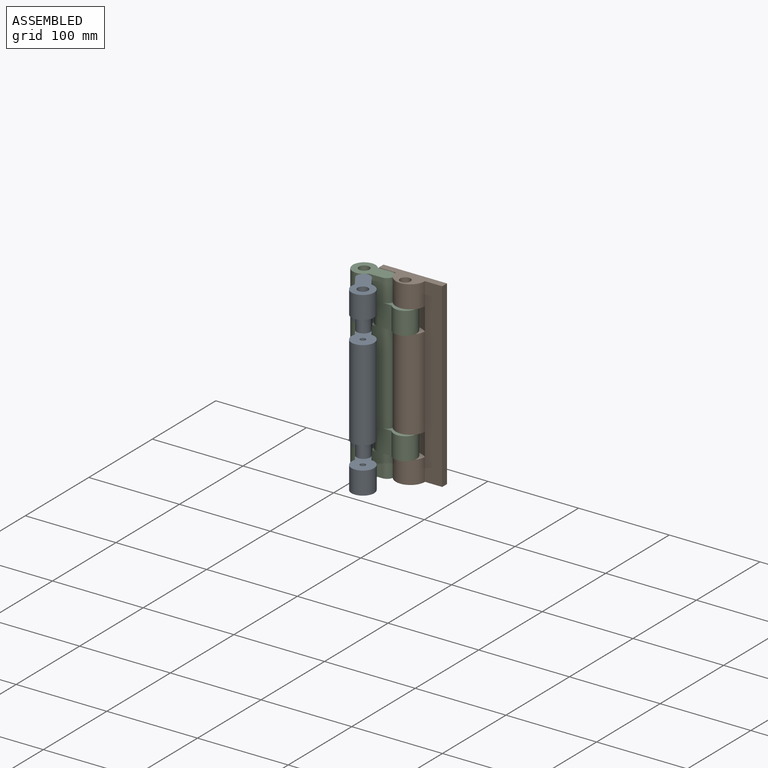
[diagram: assembled view]
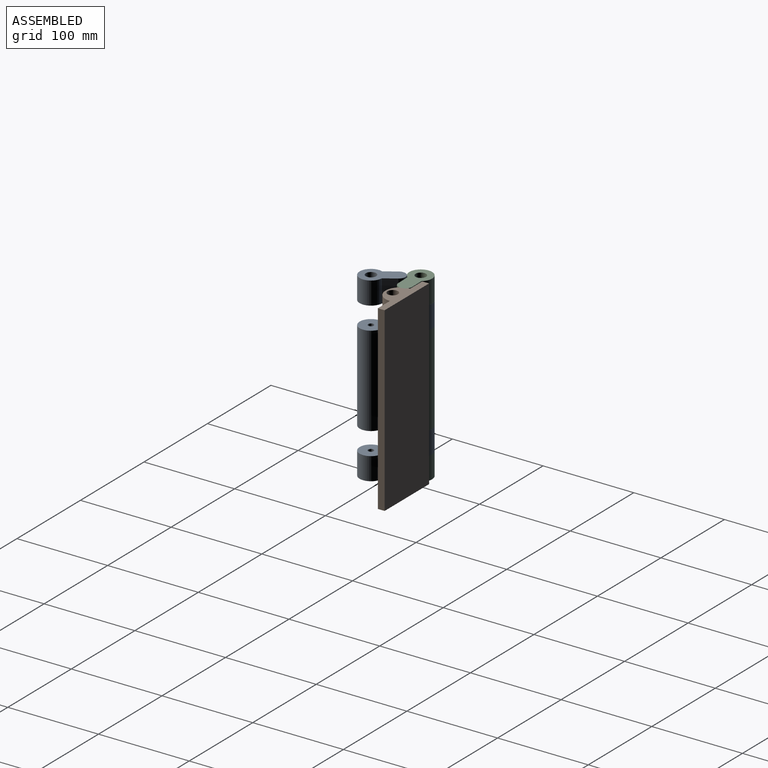
[diagram: assembled view, second angle]
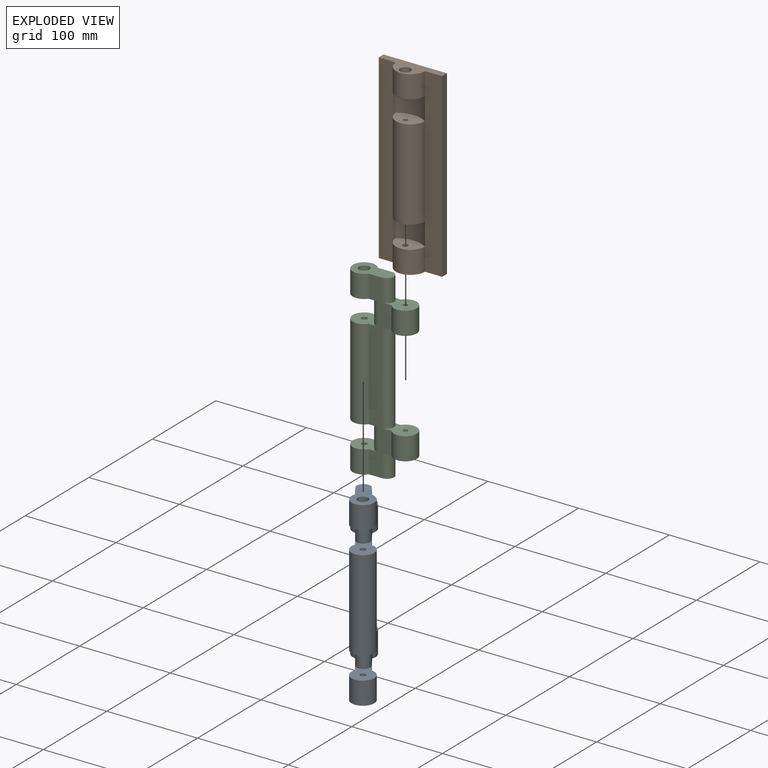
[diagram: exploded view]
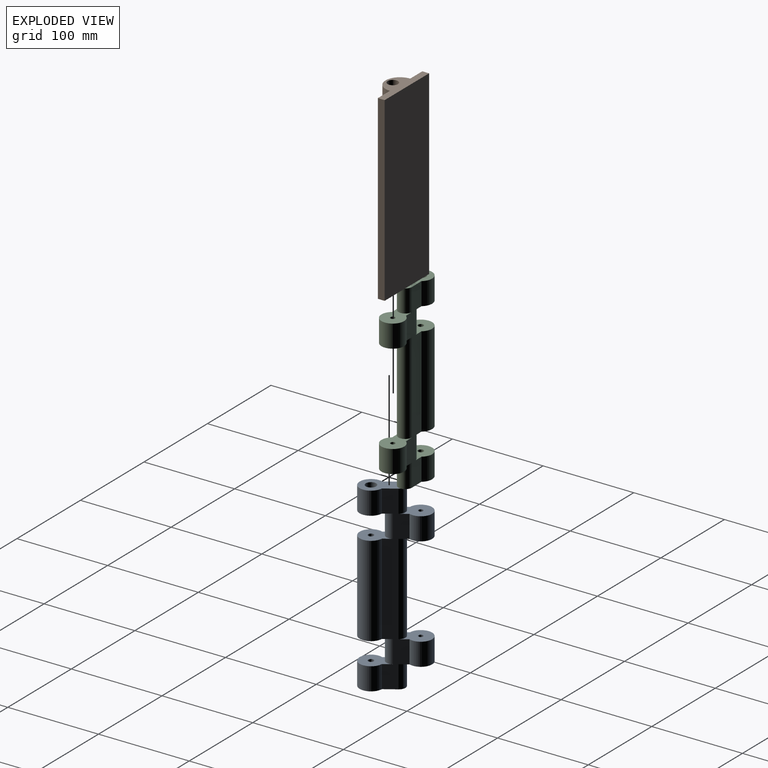
[diagram: exploded view, second angle]
ASSEMBLY  parts=3 mates=2
PART A: 31 faces, bbox 70x25x200 mm
  f0: plane 200x25mm, normal (0,1,0), area 3000mm2, adj f1,f3,f4,f5,f6,f7,f8,f9
  f1: cylinder r=12.5mm len=25mm, axis (0,0,-1), area 1561.3mm2, adj f0,f2,f15,f16
  f2: plane 200x25mm, normal (0,-1,0), area 3000mm2, adj f1,f3,f4,f5,f6,f7,f8,f9
  f3: cylinder r=12.5mm len=100mm, axis (0,0,-1), area 6245.2mm2, adj f0,f2,f10,f11
  f4: cylinder r=12.5mm len=25mm, axis (0,0,-1), area 1561.3mm2, adj f0,f2,f8,f12
  f5: cylinder r=12.5mm len=25mm, axis (0,0,-1), area 1561.3mm2, adj f0,f2,f13,f14
  f6: cylinder r=12.5mm len=25mm, axis (0,0,-1), area 1561.3mm2, adj f0,f2,f7,f9
  f7: plane 45x25mm, normal (0,0,1), area 674.8mm2, adj f0,f2,f6,f17,f29
  f8: plane 45x25mm, normal (0,0,-1), area 674.8mm2, adj f0,f2,f4,f21,f30
  f9: plane 32.5x25mm, normal (0,0,-1), area 498.7mm2, adj f0,f2,f6,f19,f28
  f10: plane 32.5x25mm, normal (0,0,1), area 498.7mm2, adj f0,f2,f3,f24,f28
  f11: plane 32.5x25mm, normal (0,0,-1), area 498.7mm2, adj f0,f2,f3,f24,f27
  f12: plane 32.5x25mm, normal (0,0,1), area 498.7mm2, adj f0,f2,f4,f23,f27
  f13: plane 32.5x25mm, normal (0,0,-1), area 507.3mm2, adj f0,f2,f5,f25,f30
  f14: plane 32.5x25mm, normal (0,0,1), area 507.3mm2, adj f0,f2,f5,f25,f26
  f15: plane 32.5x25mm, normal (0,0,-1), area 507.3mm2, adj f0,f1,f2,f20,f26
  f16: plane 32.5x25mm, normal (0,0,1), area 507.3mm2, adj f0,f1,f2,f20,f29
  f17: cylinder r=5.75mm len=11.5mm, axis (0,0,1), area 216.8mm2, adj f7,f18
  f18: plane 11.5x11.5mm, normal (0,0,1), area 75.6mm2, adj f17,f19
  f19: cylinder r=3mm len=19mm, axis (0,0,1), area 358.1mm2, adj f9,f18
  f20: cylinder r=2.5mm len=25mm, axis (0,0,1), area 392.7mm2, adj f15,f16
  f21: cylinder r=5.75mm len=11.5mm, axis (0,0,-1), area 216.8mm2, adj f8,f22
  f22: plane 11.5x11.5mm, normal (0,0,-1), area 75.6mm2, adj f21,f23
  f23: cylinder r=3mm len=19mm, axis (0,0,-1), area 358.1mm2, adj f12,f22
  f24: cylinder r=3mm len=100mm, axis (0,0,-1), area 1885mm2, adj f10,f11
  f25: cylinder r=2.5mm len=25mm, axis (0,0,-1), area 392.7mm2, adj f13,f14
  f26: cylinder r=7.5mm len=100mm, axis (0,0,-1), area 2356.2mm2, adj f0,f2,f14,f15
  f27: cylinder r=7.5mm len=25mm, axis (0,0,1), area 589mm2, adj f0,f2,f11,f12
  f28: cylinder r=7.5mm len=25mm, axis (0,0,1), area 589mm2, adj f0,f2,f9,f10
  f29: cylinder r=7.5mm len=25mm, axis (0,0,-1), area 589mm2, adj f0,f2,f7,f16
  f30: cylinder r=7.5mm len=25mm, axis (0,0,-1), area 589mm2, adj f0,f2,f8,f13
PART B: 26 faces, bbox 70x23.5x200 mm
  f0: cylinder r=16mm len=100mm, axis (0,0,1), area 5026.5mm2, adj f8,f9,f11,f19
  f1: cylinder r=16mm len=32mm, axis (0,0,1), area 1256.6mm2, adj f3,f8,f9,f12
  f2: plane 70x23.5mm, normal (0,0,-1), area 823.3mm2, adj f4,f5,f6,f7,f8,f9,f21
  f3: plane 70x23.5mm, normal (0,0,1), area 823.3mm2, adj f1,f4,f5,f6,f8,f9,f13
  f4: plane 200x7.5mm, normal (-1,0,0), area 1500mm2, adj f2,f3,f6,f8
  f5: plane 200x7.5mm, normal (1,0,0), area 1500mm2, adj f2,f3,f6,f9
  f6: plane 200x70mm, normal (0,1,0), area 14000mm2, adj f2,f3,f4,f5
  f7: cylinder r=16mm len=32mm, axis (0,0,1), area 1256.6mm2, adj f2,f8,f9,f20
  f8: plane 200x19mm, normal (0,-1,0), area 3800mm2, adj f0,f1,f2,f3,f4,f7,f10,f18
  f9: plane 200x19mm, normal (0,-1,0), area 3800mm2, adj f0,f1,f2,f3,f5,f7,f10,f18
  f10: cylinder r=28.1mm len=32mm, axis (0,0,1), area 851.1mm2, adj f8,f9,f11,f12
  f11: plane 32x21mm, normal (0,0,1), area 491.2mm2, adj f0,f10,f16
  f12: plane 32x21mm, normal (0,0,-1), area 482.6mm2, adj f1,f10,f15
  f13: cylinder r=5.75mm len=11.5mm, axis (0,0,1), area 216.8mm2, adj f3,f14
  f14: plane 11.5x11.5mm, normal (0,0,1), area 75.6mm2, adj f13,f15
  f15: cylinder r=3mm len=19mm, axis (0,0,1), area 358.1mm2, adj f12,f14
  f16: cylinder r=2.5mm len=25mm, axis (0,0,1), area 392.7mm2, adj f11,f17
  f17: plane 5x5mm, normal (0,0,1), area 19.6mm2, adj f16
  f18: cylinder r=28.1mm len=32mm, axis (0,0,-1), area 851.1mm2, adj f8,f9,f19,f20
  f19: plane 32x21mm, normal (0,0,-1), area 491.2mm2, adj f0,f18,f24
  f20: plane 32x21mm, normal (0,0,1), area 482.6mm2, adj f7,f18,f23
  f21: cylinder r=5.75mm len=11.5mm, axis (0,0,-1), area 216.8mm2, adj f2,f22
  f22: plane 11.5x11.5mm, normal (0,0,-1), area 75.6mm2, adj f21,f23
  f23: cylinder r=3mm len=19mm, axis (0,0,-1), area 358.1mm2, adj f20,f22
  f24: cylinder r=2.5mm len=25mm, axis (0,0,-1), area 392.7mm2, adj f19,f25
  f25: plane 5x5mm, normal (0,0,-1), area 19.6mm2, adj f24
PART C: same geometry as A
PLACE A rot(axis=(0,0,-1),56.5deg) t=(-32.57,-34.89,0)mm
PLACE B t=(60,0,-375)mm fixed
PLACE C rot(axis=(0,0,-1),179.2deg) t=(-22.5,-15.82,0)mm
MATE revolute C.f19 <-> A.f20  axis (0,0,-1) through (-45,-16.13,50)mm
MATE revolute B.f13 <-> C.f1  axis (0,0,1) through (0,-15.5,50)mm
